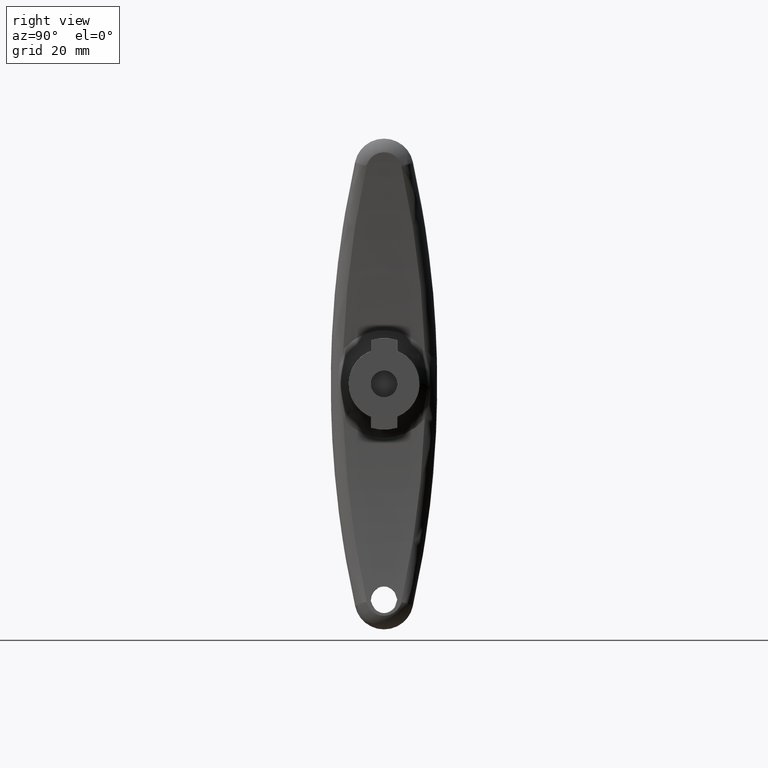
[diagram: clean part render]
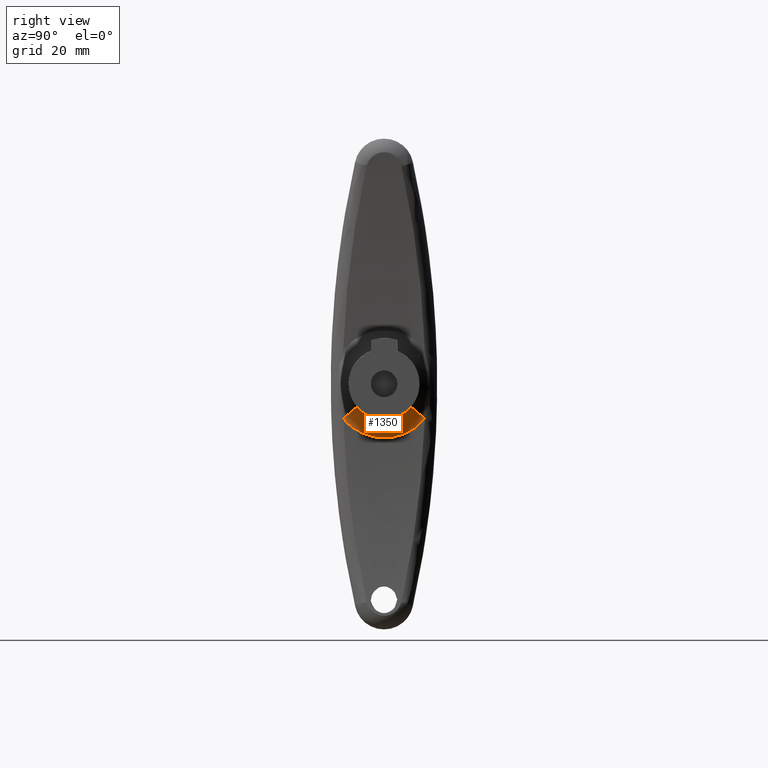
[diagram: same view with one face highlighted and labeled with its STEP entity id]
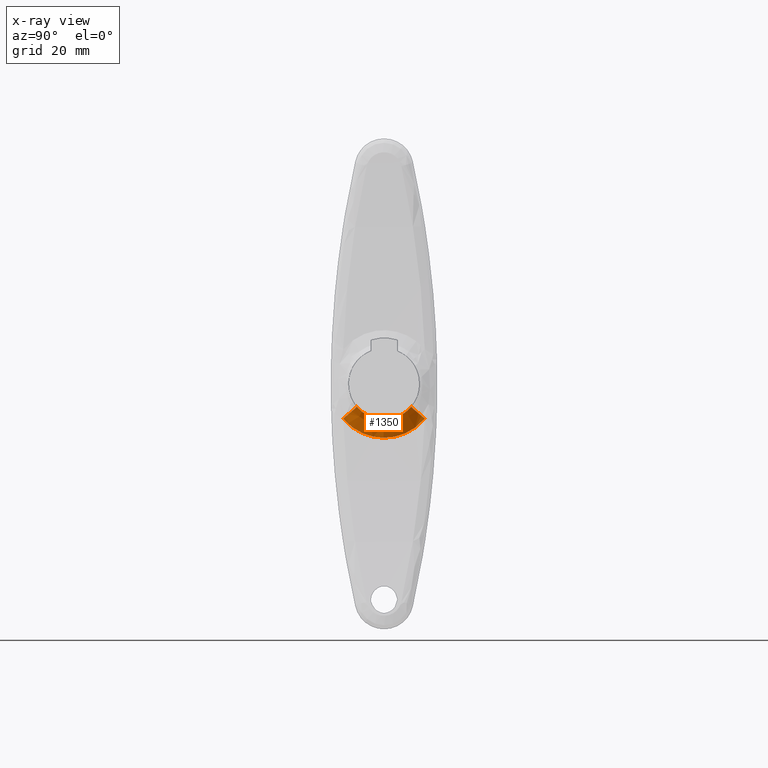
[diagram: x-ray of the same camera — body ghosted, the highlighted face saturated]
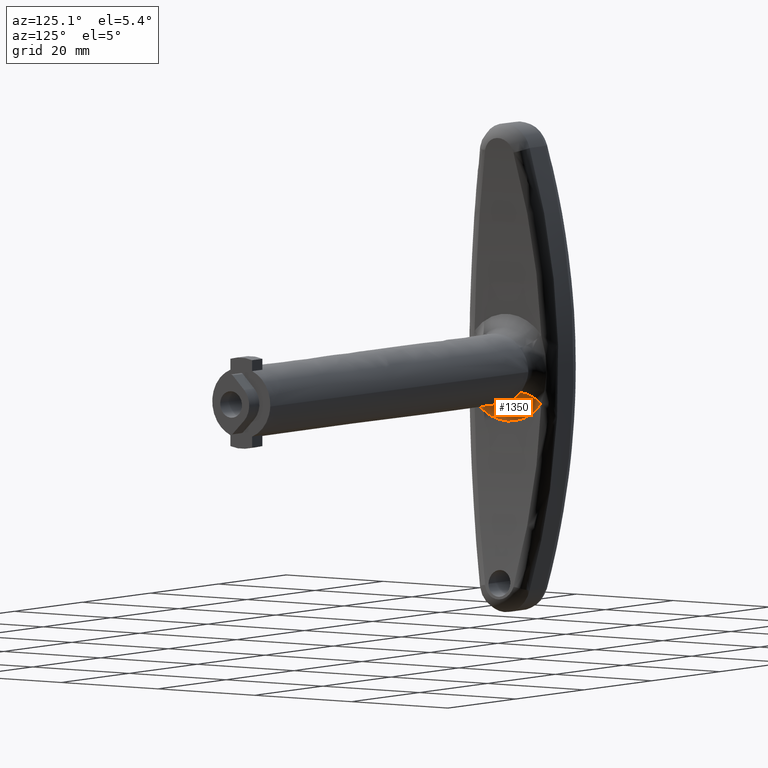
[diagram: same view with one face highlighted and labeled with its STEP entity id]
A machine part, right view. The second image highlights one B-rep face of the part: STEP entity #1350.
The next image is the same camera in x-ray: the body ghosted, the highlighted face saturated — about 20% of this face is hidden behind the body in this view.
A second angle (auxiliary view) of the same face is appended — the face is thin or edge-on in the first view.
In plain terms, the highlighted face is a freeform B-spline surface patch.
Its self-contained STEP definition (entity closure, byte-faithful):
#776=CARTESIAN_POINT('',(11.564624543245079,-4.599192498471480,-3.853236089575070));
#777=VERTEX_POINT('',#776);
#819=CARTESIAN_POINT('',(11.610090042534850,3.272476526666563,-5.029008406015510));
#820=VERTEX_POINT('',#819);
#821=CARTESIAN_POINT('',(11.564624543245079,-4.599192498471480,-3.853236089575070));
#822=CARTESIAN_POINT('',(11.570262355957290,-4.458393800137471,-4.021292307158803));
#823=CARTESIAN_POINT('',(11.575967271237859,-4.309472558125570,-4.180389350528753));
#824=CARTESIAN_POINT('',(11.587307974476440,-3.995814572103661,-4.481146543559900));
#825=CARTESIAN_POINT('',(11.592944164256940,-3.831076967938454,-4.622805729410819));
#826=CARTESIAN_POINT('',(11.601196959464289,-3.572000781171291,-4.822103286817665));
#827=CARTESIAN_POINT('',(11.603914296431540,-3.483642735109847,-4.886332468776915));
#828=CARTESIAN_POINT('',(11.609256058190271,-3.302855430296523,-5.010305108454277));
#829=CARTESIAN_POINT('',(11.611887984394990,-3.210137796849027,-5.070213565467997));
#830=CARTESIAN_POINT('',(11.619525448300880,-2.928693336335162,-5.241274894163068));
#831=CARTESIAN_POINT('',(11.624285757569190,-2.736335637415311,-5.344129092887162));
#832=CARTESIAN_POINT('',(11.632996317342339,-2.342441900444503,-5.528129263356677));
#833=CARTESIAN_POINT('',(11.636946858368900,-2.140905191772721,-5.609273632381676));
#834=CARTESIAN_POINT('',(11.642157190087399,-1.831674367145077,-5.714614608108121));
#835=CARTESIAN_POINT('',(11.643774716750270,-1.727440617140913,-5.746993045330386));
#836=CARTESIAN_POINT('',(11.646752788063340,-1.516621255809115,-5.806189739849191));
#837=CARTESIAN_POINT('',(11.648116577020900,-1.409738736137565,-5.833071446068615));
#838=CARTESIAN_POINT('',(11.651769505767421,-1.087684582037460,-5.904685361400913));
#839=CARTESIAN_POINT('',(11.653611209960779,-0.872221510912426,-5.940246320106456));
#840=CARTESIAN_POINT('',(11.656081694229711,-0.439824702744740,-5.987808369003174));
#841=CARTESIAN_POINT('',(11.656710524980941,-0.222890828140923,-5.999807247044539));
#842=CARTESIAN_POINT('',(11.656730305288900,0.212451360131927,-6.000185812460059));
#843=CARTESIAN_POINT('',(11.656120590013700,0.430984768907644,-5.988554608437180));
#844=CARTESIAN_POINT('',(11.653640424387200,0.869074668387924,-5.940811510021043));
#845=CARTESIAN_POINT('',(11.651788255209929,1.085548150314391,-5.905047896064562));
#846=CARTESIAN_POINT('',(11.648156311474100,1.406464181729771,-5.833853265250944));
#847=CARTESIAN_POINT('',(11.646803359864199,1.512802376719954,-5.807190130127007));
#848=CARTESIAN_POINT('',(11.643823541545419,1.724204399997504,-5.747968902062155));
#849=CARTESIAN_POINT('',(11.642193131842330,1.829474299903102,-5.715339225620048));
#850=CARTESIAN_POINT('',(11.636932305241499,2.141885148228830,-5.608984694351020));
#851=CARTESIAN_POINT('',(11.632955730029339,2.344430770235421,-5.527288707293236));
#852=CARTESIAN_POINT('',(11.624235145203089,2.738458091984131,-5.343044247987025));
#853=CARTESIAN_POINT('',(11.619490795794761,2.929938681177328,-5.240493694615674));
#854=CARTESIAN_POINT('',(11.613017275286520,3.168524673718185,-5.095509628301231));
#855=CARTESIAN_POINT('',(11.611564752629230,3.220724902539402,-5.062681969309741));
#856=CARTESIAN_POINT('',(11.610090042534850,3.272476526666563,-5.029008406015510));
#857=B_SPLINE_CURVE_WITH_KNOTS('',3,(#821,#822,#823,#824,#825,#826,#827,#828,#829,#830,#831,#832,#833,#834,#835,#836,#837,#838,#839,#840,#841,#842,#843,#844,#845,#846,#847,#848,#849,#850,#851,#852,#853,#854,#855,#856),.UNSPECIFIED.,.F.,.U.,(4,2,2,2,2,2,2,2,2,2,2,2,2,2,2,2,2,4),(0.0,0.062500000000000,0.125000000000000,0.156250000000000,0.187500000000000,0.250000000000000,0.312500000000000,0.343750000000000,0.375000000000000,0.437500000000000,0.500000000000000,0.562500000000000,0.625000000000000,0.656250000000000,0.687500000000000,0.750000000000000,0.812500000000000,0.830195075067958),.UNSPECIFIED.);
#858=EDGE_CURVE('',#777,#820,#857,.T.);
#946=CARTESIAN_POINT('',(11.564624543245060,4.599192498471490,-3.853236089575050));
#947=VERTEX_POINT('',#946);
#948=CARTESIAN_POINT('',(11.610090042534850,3.272476526666563,-5.029008406015510));
#949=CARTESIAN_POINT('',(11.606356007934650,3.403514679304388,-4.943745250859291));
#950=CARTESIAN_POINT('',(11.602479722875870,3.531676689217868,-4.853058742780226));
#951=CARTESIAN_POINT('',(11.592931415470240,3.831544037326988,-4.622530435973132));
#952=CARTESIAN_POINT('',(11.587258517378540,3.997239931884149,-4.479888465716499));
#953=CARTESIAN_POINT('',(11.575901620597710,4.311226766003297,-4.178595270875014));
#954=CARTESIAN_POINT('',(11.570216402019661,4.459540918859289,-4.019922699934287));
#955=CARTESIAN_POINT('',(11.564624543245060,4.599192498471490,-3.853236089575050));
#956=B_SPLINE_CURVE_WITH_KNOTS('',3,(#948,#949,#950,#951,#952,#953,#954,#955),.UNSPECIFIED.,.F.,.U.,(4,2,2,4),(0.830195075067958,0.875000000000000,0.937500000000000,1.0),.UNSPECIFIED.);
#957=EDGE_CURVE('',#820,#947,#956,.T.);
#1128=CARTESIAN_POINT('',(8.564319779888555,6.965690553610656,-5.799913653711784));
#1129=CARTESIAN_POINT('',(8.564774448350697,6.948894105547625,-5.820195489208936));
#1130=CARTESIAN_POINT('',(8.565229116488425,6.932097669468837,-5.840477310235015));
#1131=CARTESIAN_POINT('',(8.577050374458224,6.495394528464789,-6.367799588950844));
#1132=CARTESIAN_POINT('',(8.588804941255988,6.023648790489855,-6.826739748534363));
#1133=CARTESIAN_POINT('',(8.611418243442335,4.973127605316789,-7.643734071074368));
#1134=CARTESIAN_POINT('',(8.621846651336268,4.413615304497153,-7.986860405080872));
#1135=CARTESIAN_POINT('',(8.639574787215441,3.228677281349342,-8.547348868241111));
#1136=CARTESIAN_POINT('',(8.646901248698608,2.597125062479948,-8.765219965978558));
#1137=CARTESIAN_POINT('',(8.656744857848205,1.310450526220749,-9.053967621057835));
#1138=CARTESIAN_POINT('',(8.659316773525051,0.646700722085479,-9.126760956516117));
#1139=CARTESIAN_POINT('',(8.659276633852002,-0.662361853554006,-9.125611495852251));
#1140=CARTESIAN_POINT('',(8.656740043271862,-1.312507352143585,-9.053842234415894));
#1141=CARTESIAN_POINT('',(8.649314768552602,-2.280929568077115,-8.836008843443807));
#1142=CARTESIAN_POINT('',(8.646260593959921,-2.598941856318591,-8.745556380833449));
#1143=CARTESIAN_POINT('',(8.639199507348423,-3.218878988153056,-8.531928403517226));
#1144=CARTESIAN_POINT('',(8.635184050968723,-3.521911198402435,-8.408506955029424));
#1145=CARTESIAN_POINT('',(8.626330151230086,-4.114180841149678,-8.128633852306763));
#1146=CARTESIAN_POINT('',(8.621491405168994,-4.403419382356382,-7.972184502117008));
#1147=CARTESIAN_POINT('',(8.611140156993217,-4.967682543540210,-7.625247532296093));
#1148=CARTESIAN_POINT('',(8.605656766383804,-5.240887479110699,-7.435625093361883));
#1149=CARTESIAN_POINT('',(8.588878402579567,-6.020026690381152,-6.829297332960278));
#1150=CARTESIAN_POINT('',(8.577144618401368,-6.491912927492844,-6.372003634606051));
#1151=CARTESIAN_POINT('',(8.565225346659242,-6.932236936149124,-5.840309145219289));
#1152=CARTESIAN_POINT('',(8.564766908686801,-6.949172639110987,-5.819859158932624));
#1153=CARTESIAN_POINT('',(8.564308470384463,-6.966108354259836,-5.799409157930071));
#1154=CARTESIAN_POINT('',(8.564168619849424,6.957387713385407,-5.793083200513749));
#1155=CARTESIAN_POINT('',(8.564622211312159,6.940610941955561,-5.813340751545877));
#1156=CARTESIAN_POINT('',(8.565075802612832,6.923834176519823,-5.833598295340263));
#1157=CARTESIAN_POINT('',(8.576869119800378,6.487640369738120,-6.360291904878282));
#1158=CARTESIAN_POINT('',(8.588595769234644,6.016448127924531,-6.818680862557332));
#1159=CARTESIAN_POINT('',(8.611155170953184,4.967167623106770,-7.634689611231473));
#1160=CARTESIAN_POINT('',(8.621558610278116,4.408319733005333,-7.977399169035470));
#1161=CARTESIAN_POINT('',(8.639244216251592,3.224795422763469,-8.537205049186008));
#1162=CARTESIAN_POINT('',(8.646553026043589,2.594000246247685,-8.754809179285218));
#1163=CARTESIAN_POINT('',(8.656372914117938,1.308871658246230,-9.043202863074399));
#1164=CARTESIAN_POINT('',(8.658938610817963,0.645921761447569,-9.115906548525018));
#1165=CARTESIAN_POINT('',(8.658898568027603,-0.661564025195470,-9.114758500269074));
#1166=CARTESIAN_POINT('',(8.656368111305728,-1.310926000266269,-9.043077633179649));
#1167=CARTESIAN_POINT('',(8.648960724728740,-2.278184990690831,-8.825511200237141));
#1168=CARTESIAN_POINT('',(8.645913907108037,-2.595815639910738,-8.735169548588321));
#1169=CARTESIAN_POINT('',(8.638869803354163,-3.215010173519277,-8.521802711424169));
#1170=CARTESIAN_POINT('',(8.634863997068663,-3.517680026596362,-8.398531955355965));
#1171=CARTESIAN_POINT('',(8.626031338097633,-4.109243039849997,-8.118999697076882));
#1172=CARTESIAN_POINT('',(8.621204187232644,-4.398137261859735,-7.962740568249259));
#1173=CARTESIAN_POINT('',(8.610877696305010,-4.961730432486607,-7.616224226014611));
#1174=CARTESIAN_POINT('',(8.605407400784374,-5.234611852681518,-7.426831203172410));
#1175=CARTESIAN_POINT('',(8.588669054451858,-6.012830332198806,-6.821235340938783));
#1176=CARTESIAN_POINT('',(8.576963141331023,-6.484162827964408,-6.364490946342609));
#1177=CARTESIAN_POINT('',(8.565072041715855,-6.923973279514804,-5.833430332082957));
#1178=CARTESIAN_POINT('',(8.564614689515411,-6.940889148046966,-5.813004824908767));
#1179=CARTESIAN_POINT('',(8.564157337150178,-6.957805022674648,-5.792579310374397));
#1180=CARTESIAN_POINT('',(8.521243521282695,4.599620163960442,-3.853431170450950));
#1181=CARTESIAN_POINT('',(8.521389081620336,4.588311598270168,-3.866693830145373));
#1182=CARTESIAN_POINT('',(8.521534656631502,4.577001892595358,-3.879957826811022));
#1183=CARTESIAN_POINT('',(8.525324764689366,4.282548838691840,-4.225291687608610));
#1184=CARTESIAN_POINT('',(8.529033972625845,3.966057275437112,-4.523910632922966));
#1185=CARTESIAN_POINT('',(8.536054381764835,3.265737842396736,-5.052716580965944));
#1186=CARTESIAN_POINT('',(8.539233000632194,2.894781509372116,-5.273263757087630));
#1187=CARTESIAN_POINT('',(8.544573152092250,2.113083495749203,-5.632152126837710));
#1188=CARTESIAN_POINT('',(8.546743709828609,1.698349814113489,-5.770817511399364));
#1189=CARTESIAN_POINT('',(8.549645071248753,0.855821480529887,-5.954296383129250));
#1190=CARTESIAN_POINT('',(8.550394436444508,0.422336416498958,-6.000362018040753));
#1191=CARTESIAN_POINT('',(8.550382698366057,-0.432564119414261,-5.999633624849404));
#1192=CARTESIAN_POINT('',(8.549643702818271,-0.857163325688451,-5.954217830506675));
#1193=CARTESIAN_POINT('',(8.547455055880983,-1.491304541089586,-5.815798212183144));
#1194=CARTESIAN_POINT('',(8.546552018378961,-1.699829059595664,-5.758260374851790));
#1195=CARTESIAN_POINT('',(8.544451010723371,-2.107080597330125,-5.622063434352168));
#1196=CARTESIAN_POINT('',(8.543250481467220,-2.306532391188440,-5.543247929695498));
#1197=CARTESIAN_POINT('',(8.540583593682218,-2.697243573936253,-5.364044360983696));
#1198=CARTESIAN_POINT('',(8.539117106343767,-2.888503643600542,-5.263657867576174));
#1199=CARTESIAN_POINT('',(8.535953866029205,-3.262599940177566,-5.040369255192062));
#1200=CARTESIAN_POINT('',(8.534265766287120,-3.444235302395450,-4.918017946250030));
#1201=CARTESIAN_POINT('',(8.529056619075210,-3.963648226820706,-4.525561700807828));
#1202=CARTESIAN_POINT('',(8.525354976575665,-4.280201674213532,-4.228044435931496));
#1203=CARTESIAN_POINT('',(8.521533451387626,-4.577095528117079,-3.879848011317626));
#1204=CARTESIAN_POINT('',(8.521386671380608,-4.588498850041022,-3.866474221761419));
#1205=CARTESIAN_POINT('',(8.521239906295129,-4.599901012712231,-3.853101791774134));
#1206=CARTESIAN_POINT('',(11.573946637323292,4.632822741124971,-3.813092821321408));
#1207=CARTESIAN_POINT('',(11.574394478003246,4.621651797507848,-3.826427196802956));
#1208=CARTESIAN_POINT('',(11.574842318524952,4.610480857837974,-3.839761567572794));
#1209=CARTESIAN_POINT('',(11.586486116795969,4.320037805659507,-4.186453561238926));
#1210=CARTESIAN_POINT('',(11.598063942602419,4.006290590485271,-4.488185202886380));
#1211=CARTESIAN_POINT('',(11.620337115624286,3.307605134538027,-5.025327747035841));
#1212=CARTESIAN_POINT('',(11.630608535588072,2.935479909471341,-5.250921756641879));
#1213=CARTESIAN_POINT('',(11.648069687283634,2.147386588293792,-5.619426340297254));
#1214=CARTESIAN_POINT('',(11.655285724330923,1.727344231045060,-5.762670852680325));
#1215=CARTESIAN_POINT('',(11.664980960340937,0.871579761215875,-5.952515614144335));
#1216=CARTESIAN_POINT('',(11.667514085114025,0.430120501732097,-6.000375612629663));
#1217=CARTESIAN_POINT('',(11.667474550630759,-0.440536711937619,-5.999619866642936));
#1218=CARTESIAN_POINT('',(11.664976218494013,-0.872947751856652,-5.952433175132114));
#1219=CARTESIAN_POINT('',(11.657662859999375,-1.517043705203290,-5.809212771906420));
#1220=CARTESIAN_POINT('',(11.654654717085615,-1.728552627971710,-5.749742524714661));
#1221=CARTESIAN_POINT('',(11.647700022490802,-2.140870037730476,-5.609287724688842));
#1222=CARTESIAN_POINT('',(11.643745058731483,-2.342414942572114,-5.528141555527555));
#1223=CARTESIAN_POINT('',(11.635024498187574,-2.736329011604006,-5.344133266495657));
#1224=CARTESIAN_POINT('',(11.630258606902865,-2.928698850006560,-5.241272754078420));
#1225=CARTESIAN_POINT('',(11.620063155681123,-3.303983930372293,-5.013173369410671));
#1226=CARTESIAN_POINT('',(11.614662271507848,-3.485688891023679,-4.888503421709815));
#1227=CARTESIAN_POINT('',(11.598136297880352,-4.003881603327076,-4.489866704406710));
#1228=CARTESIAN_POINT('',(11.586578944820554,-4.317722202953062,-4.189217617177072));
#1229=CARTESIAN_POINT('',(11.574838605369063,-4.610573482818193,-3.839651004294446));
#1230=CARTESIAN_POINT('',(11.574387051688731,-4.621837047535085,-3.826206070166510));
#1231=CARTESIAN_POINT('',(11.573935497847501,-4.633100616266013,-3.812761131247163));
#1232=CARTESIAN_POINT('',(11.584579024324833,4.632938383765753,-3.812952325202839));
#1233=CARTESIAN_POINT('',(11.585027378168551,4.621767913584941,-3.826286957583975));
#1234=CARTESIAN_POINT('',(11.585475731695901,4.610597451286581,-3.839621580555520));
#1235=CARTESIAN_POINT('',(11.597132812608647,4.320168192000415,-4.186318482531913));
#1236=CARTESIAN_POINT('',(11.608723950748811,4.006430337398907,-4.488061113718479));
#1237=CARTESIAN_POINT('',(11.631022885178632,3.307750187464198,-5.025232856005092));
#1238=CARTESIAN_POINT('',(11.641306273046009,2.935620746711688,-5.250844441915035));
#1239=CARTESIAN_POINT('',(11.658787829232981,2.147505056418705,-5.619382390905011));
#1240=CARTESIAN_POINT('',(11.666012359403407,1.727444281978300,-5.762642741033540));
#1241=CARTESIAN_POINT('',(11.675719006046819,0.871634077393737,-5.952509476129227));
#1242=CARTESIAN_POINT('',(11.678255129727184,0.430147324317107,-6.000375659474221));
#1243=CARTESIAN_POINT('',(11.678215548596501,-0.440564184211178,-5.999619819234361));
#1244=CARTESIAN_POINT('',(11.675714258479111,-0.873002158183580,-5.952427023717885));
#1245=CARTESIAN_POINT('',(11.668392297726466,-1.517132498871077,-5.809190053787310));
#1246=CARTESIAN_POINT('',(11.665380616334810,-1.728651751498293,-5.749713130060990));
#1247=CARTESIAN_POINT('',(11.658417761683715,-2.140986736844312,-5.609243601022438));
#1248=CARTESIAN_POINT('',(11.654458162917154,-2.342538927150005,-5.528089358642087));
#1249=CARTESIAN_POINT('',(11.645727411672029,-2.736464198563708,-5.344064398894604));
#1250=CARTESIAN_POINT('',(11.640955960649634,-2.928837951481459,-5.241195287072232));
#1251=CARTESIAN_POINT('',(11.630748652971169,-3.304127313266199,-5.013079143967754));
#1252=CARTESIAN_POINT('',(11.625341502756319,-3.485832603840610,-4.888401099676845));
#1253=CARTESIAN_POINT('',(11.608796390634485,-4.004021349299891,-4.489742721971476));
#1254=CARTESIAN_POINT('',(11.597225742681292,-4.317852697647101,-4.189082579265721));
#1255=CARTESIAN_POINT('',(11.585472014423315,-4.610690072798128,-3.839511014612159));
#1256=CARTESIAN_POINT('',(11.585019943617986,-4.621953156741414,-3.826065825538029));
#1257=CARTESIAN_POINT('',(11.584567872490913,-4.633216248700497,-3.812620626895113));
#1265=(BOUNDED_SURFACE()B_SPLINE_SURFACE(3,2,((#1128,#1154,#1180,#1206,#1232),(#1129,#1155,#1181,#1207,#1233),(#1130,#1156,#1182,#1208,#1234),(#1131,#1157,#1183,#1209,#1235),(#1132,#1158,#1184,#1210,#1236),(#1133,#1159,#1185,#1211,#1237),(#1134,#1160,#1186,#1212,#1238),(#1135,#1161,#1187,#1213,#1239),(#1136,#1162,#1188,#1214,#1240),(#1137,#1163,#1189,#1215,#1241),(#1138,#1164,#1190,#1216,#1242),(#1139,#1165,#1191,#1217,#1243),(#1140,#1166,#1192,#1218,#1244),(#1141,#1167,#1193,#1219,#1245),(#1142,#1168,#1194,#1220,#1246),(#1143,#1169,#1195,#1221,#1247),(#1144,#1170,#1196,#1222,#1248),(#1145,#1171,#1197,#1223,#1249),(#1146,#1172,#1198,#1224,#1250),(#1147,#1173,#1199,#1225,#1251),(#1148,#1174,#1200,#1226,#1252),(#1149,#1175,#1201,#1227,#1253),(#1150,#1176,#1202,#1228,#1254),(#1151,#1177,#1203,#1229,#1255),(#1152,#1178,#1204,#1230,#1256),(#1153,#1179,#1205,#1231,#1257)),.UNSPECIFIED.,.F.,.F.,.U.)B_SPLINE_SURFACE_WITH_KNOTS((4,2,2,2,2,2,2,2,2,2,2,2,4),(3,1,1,3),(0.0,0.079668594497735,2.071383501454276,4.063098408410817,6.054813315367358,8.046528222323902,10.038243129280451,11.034100582758720,12.029958036236989,13.025815489715260,14.021672943193529,16.013387850150071,16.093056444689839),(0.0,0.025749390502867,5.118527467815865,5.143992778034594),.UNSPECIFIED.)GEOMETRIC_REPRESENTATION_ITEM()RATIONAL_B_SPLINE_SURFACE(((1.003012220103875,1.001506110051937,0.702117832510511,1.001489493884986,1.002978987769972),(1.003012577928200,1.001506288964100,0.702082446820864,1.001489670823299,1.002979341646599),(1.003012935752526,1.001506467876263,0.702047061131216,1.001489847761613,1.002979695523226),(1.003022239185197,1.001511119592598,0.701127033180613,1.001494448157863,1.002988896315727),(1.003031509787606,1.001515754893803,0.700210251855132,1.001499032320083,1.002998064640167),(1.003049374590797,1.001524687295399,0.698443579396628,1.001507866174912,1.003015732349824),(1.003057629795638,1.001528814897819,0.697627211991048,1.001511948239538,1.003023896479076),(1.003071681297851,1.001535840648925,0.696237641577470,1.001518896479009,1.003037792958017),(1.003077498464241,1.001538749232121,0.695662374806365,1.001521772973245,1.003043545946489),(1.003085318401694,1.001542659200847,0.694889051530568,1.001525639805221,1.003051279610442),(1.003087363980616,1.001543681990308,0.694686761703850,1.001526651310752,1.003053302621503),(1.003087332067144,1.001543666033572,0.694689917666523,1.001526635530058,1.003053271060117),(1.003085314562959,1.001542657281479,0.694889431147885,1.001525637907029,1.003051275814057),(1.003079415806238,1.001539707903119,0.695472766487545,1.001522721067700,1.003045442135400),(1.003076990305754,1.001538495152877,0.695712627226979,1.001521521697131,1.003043043394263),(1.003071386361337,1.001535693180668,0.696266808213746,1.001518750637696,1.003037501275391),(1.003068201147083,1.001534100573541,0.696581797986418,1.001517175601015,1.003034351202031),(1.003061183420388,1.001530591710194,0.697275789649273,1.001513705449221,1.003027410898442),(1.003057350685096,1.001528675342548,0.697654813577371,1.001511810223911,1.003023620447822),(1.003049158861180,1.001524579430590,0.698464913164948,1.001507759500123,1.003015519000246),(1.003044822885062,1.001522411442531,0.698893703200096,1.001505615430403,1.003011230860807),(1.003031567866932,1.001515783933466,0.700204508318782,1.001499061039366,1.002998122078733),(1.003022315716162,1.001511157858081,0.701119464938889,1.001494486001182,1.002988972002364),(1.003012932691288,1.001506466345644,0.702047363860897,1.001489846247880,1.002979692495760),(1.003012571805723,1.001506285902862,0.702083052280226,1.001489667795834,1.002979335591667),(1.003012210920159,1.001506105460079,0.702118740699554,1.001489489343787,1.002978978687575)))REPRESENTATION_ITEM('')SURFACE());
#1266=CARTESIAN_POINT('',(8.565374537977030,6.898788747707260,-5.846931745379780));
#1267=VERTEX_POINT('',#1266);
#1268=CARTESIAN_POINT('',(8.565374537977020,6.898788747707250,-5.846931745379793));
#1269=CARTESIAN_POINT('',(8.547352391985227,5.936479352512659,-5.041105171637383));
#1270=CARTESIAN_POINT('',(9.428442119084160,5.260926921698945,-4.455417163566732));
#1271=CARTESIAN_POINT('',(10.309531846183095,4.585374490885231,-3.869729155496080));
#1272=CARTESIAN_POINT('',(11.564624543245060,4.599192498471490,-3.853236089575050));
#1280=(BOUNDED_CURVE()B_SPLINE_CURVE(2,(#1268,#1269,#1270,#1271,#1272),.UNSPECIFIED.,.F.,.U.)B_SPLINE_CURVE_WITH_KNOTS((3,2,3),(0.0,0.500000000000000,1.0),.UNSPECIFIED.)CURVE()GEOMETRIC_REPRESENTATION_ITEM()RATIONAL_B_SPLINE_CURVE((1.0,0.922499776542403,1.0,0.922499776542403,1.0))REPRESENTATION_ITEM(''));
#1281=EDGE_CURVE('',#1267,#947,#1280,.T.);
#1282=ORIENTED_EDGE('',*,*,#1281,.T.);
#1283=ORIENTED_EDGE('',*,*,#957,.F.);
#1284=ORIENTED_EDGE('',*,*,#858,.F.);
#1285=CARTESIAN_POINT('',(8.565374537977080,-6.898788747707240,-5.846931745379830));
#1286=VERTEX_POINT('',#1285);
#1287=CARTESIAN_POINT('',(11.564624543245079,-4.599192498471474,-3.853236089575067));
#1288=CARTESIAN_POINT('',(10.309531846183123,-4.585374490885208,-3.869729155496078));
#1289=CARTESIAN_POINT('',(9.428442119084187,-5.260926921698929,-4.455417163566739));
#1290=CARTESIAN_POINT('',(8.547352391985251,-5.936479352512650,-5.041105171637403));
#1291=CARTESIAN_POINT('',(8.565374537977059,-6.898788747707240,-5.846931745379830));
#1299=(BOUNDED_CURVE()B_SPLINE_CURVE(2,(#1287,#1288,#1289,#1290,#1291),.UNSPECIFIED.,.F.,.U.)B_SPLINE_CURVE_WITH_KNOTS((3,2,3),(0.0,0.500000000000000,1.0),.UNSPECIFIED.)CURVE()GEOMETRIC_REPRESENTATION_ITEM()RATIONAL_B_SPLINE_CURVE((1.0,0.922499776542402,1.0,0.922499776542402,1.0))REPRESENTATION_ITEM(''));
#1300=EDGE_CURVE('',#777,#1286,#1299,.T.);
#1301=ORIENTED_EDGE('',*,*,#1300,.T.);
#1302=CARTESIAN_POINT('',(8.565374537977030,6.898788747707260,-5.846931745379780));
#1303=CARTESIAN_POINT('',(8.571007827662710,6.690181183218795,-6.098813764775187));
#1304=CARTESIAN_POINT('',(8.576738374677243,6.468556264590209,-6.338793730667345));
#1305=CARTESIAN_POINT('',(8.588193831265979,5.999128236295182,-6.794823056447641));
#1306=CARTESIAN_POINT('',(8.593919157418410,5.751328816012403,-7.010875779267711));
#1307=CARTESIAN_POINT('',(8.605156886804085,5.228452547209046,-7.418050585300719));
#1308=CARTESIAN_POINT('',(8.610563129112331,4.958243927776730,-7.605376836105400));
#1309=CARTESIAN_POINT('',(8.620772709620887,4.400987663726124,-7.948522225731934));
#1310=CARTESIAN_POINT('',(8.625576801248210,4.113919457796063,-8.104352952527249));
#1311=CARTESIAN_POINT('',(8.634413036138490,3.522875810571714,-8.384485093734295));
#1312=CARTESIAN_POINT('',(8.638445530367283,3.218902356103289,-8.508790205364115));
#1313=CARTESIAN_POINT('',(8.642894000116627,2.827966439520507,-8.643718737026964));
#1314=CARTESIAN_POINT('',(8.643754224569644,2.749202618166159,-8.669683453025606));
#1315=CARTESIAN_POINT('',(8.645404348245846,2.591380812791141,-8.719286020622324));
#1316=CARTESIAN_POINT('',(8.647777554613059,2.353908882847209,-8.790305089099462));
#1317=CARTESIAN_POINT('',(8.649838513902610,2.114233961903788,-8.851237283966098));
#1318=CARTESIAN_POINT('',(8.653527464310747,1.631960768569859,-8.959717103518520));
#1319=CARTESIAN_POINT('',(8.655409571559527,1.306556503034887,-9.014232131647050));
#1320=CARTESIAN_POINT('',(8.657930126660700,0.647830621863339,-9.087014991126825));
#1321=CARTESIAN_POINT('',(8.658549622717112,0.319213596773701,-9.104741401678048));
#1322=CARTESIAN_POINT('',(8.658528977737550,-0.335323618655305,-9.104148791249934));
#1323=CARTESIAN_POINT('',(8.657889608712136,-0.661457009501579,-9.085849072519212));
#1324=CARTESIAN_POINT('',(8.655378852038789,-1.311459591571149,-9.013340899549796));
#1325=CARTESIAN_POINT('',(8.653507411402172,-1.635328991292946,-8.959135757666852));
#1326=CARTESIAN_POINT('',(8.650414777818282,-2.038703087477010,-8.868181138109121));
#1327=CARTESIAN_POINT('',(8.649757991159389,-2.119359509814551,-8.848808982481957));
#1328=CARTESIAN_POINT('',(8.648378715252534,-2.279514822900066,-8.807977652286292));
#1329=CARTESIAN_POINT('',(8.646208626196806,-2.518376612883251,-8.743522329365607));
#1330=CARTESIAN_POINT('',(8.643746088784909,-2.753178641821811,-8.669567629784590));
#1331=CARTESIAN_POINT('',(8.638459722911058,-3.217464260853952,-8.509213001265184));
#1332=CARTESIAN_POINT('',(8.634453790832206,-3.519912183621245,-8.385752411570607));
#1333=CARTESIAN_POINT('',(8.625627380941154,-4.110771407705300,-8.105980923156915));
#1334=CARTESIAN_POINT('',(8.620806605356881,-4.399183534935170,-7.949671968283068));
#1335=CARTESIAN_POINT('',(8.614365701284289,-4.750681505023450,-7.733179160571421));
#1336=CARTESIAN_POINT('',(8.613054880178796,-4.820628059005483,-7.688756634017009));
#1337=CARTESIAN_POINT('',(8.610403936646849,-4.959101797369302,-7.598100255285242));
#1338=CARTESIAN_POINT('',(8.606388068342085,-5.164462728654985,-7.459555460701831));
#1339=CARTESIAN_POINT('',(8.602268995553928,-5.362874212797089,-7.313438148728712));
#1340=CARTESIAN_POINT('',(8.593932294792989,-5.750612169742503,-7.011303048949328));
#1341=CARTESIAN_POINT('',(8.588243176667822,-5.997017009039348,-6.796707589237014));
#1342=CARTESIAN_POINT('',(8.576804145211648,-6.465949315181911,-6.341491038958915));
#1343=CARTESIAN_POINT('',(8.571053832857118,-6.688477554950926,-6.100870801055081));
#1344=CARTESIAN_POINT('',(8.565374537977080,-6.898788747707240,-5.846931745379830));
#1345=B_SPLINE_CURVE_WITH_KNOTS('',3,(#1302,#1303,#1304,#1305,#1306,#1307,#1308,#1309,#1310,#1311,#1312,#1313,#1314,#1315,#1316,#1317,#1318,#1319,#1320,#1321,#1322,#1323,#1324,#1325,#1326,#1327,#1328,#1329,#1330,#1331,#1332,#1333,#1334,#1335,#1336,#1337,#1338,#1339,#1340,#1341,#1342,#1343,#1344),.UNSPECIFIED.,.F.,.U.,(4,2,2,2,2,2,2,1,2,2,2,2,2,2,1,2,2,2,2,1,2,2,4),(0.0,0.062500000000000,0.125000000000000,0.187500000000000,0.250000000000000,0.312500000000000,0.328125000000000,0.343750000000000,0.375000000000000,0.437500000000000,0.500000000000000,0.562500000000000,0.625000000000000,0.640625000000000,0.656250000000000,0.687500000000000,0.750000000000000,0.812500000000000,0.828125000000000,0.843750000000000,0.875000000000000,0.937500000000000,1.0),.UNSPECIFIED.);
#1346=EDGE_CURVE('',#1267,#1286,#1345,.T.);
#1347=ORIENTED_EDGE('',*,*,#1346,.F.);
#1348=EDGE_LOOP('',(#1282,#1283,#1284,#1301,#1347));
#1349=FACE_OUTER_BOUND('',#1348,.T.);
#1350=ADVANCED_FACE('',(#1349),#1265,.F.);